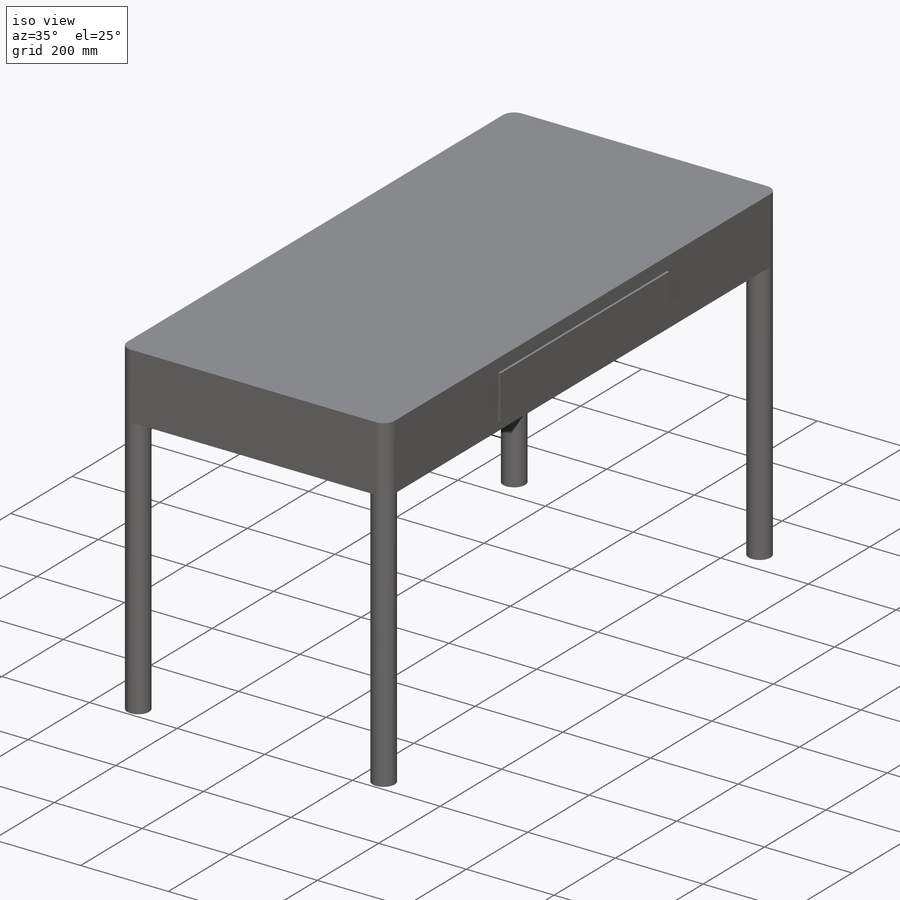
[diagram: iso view]
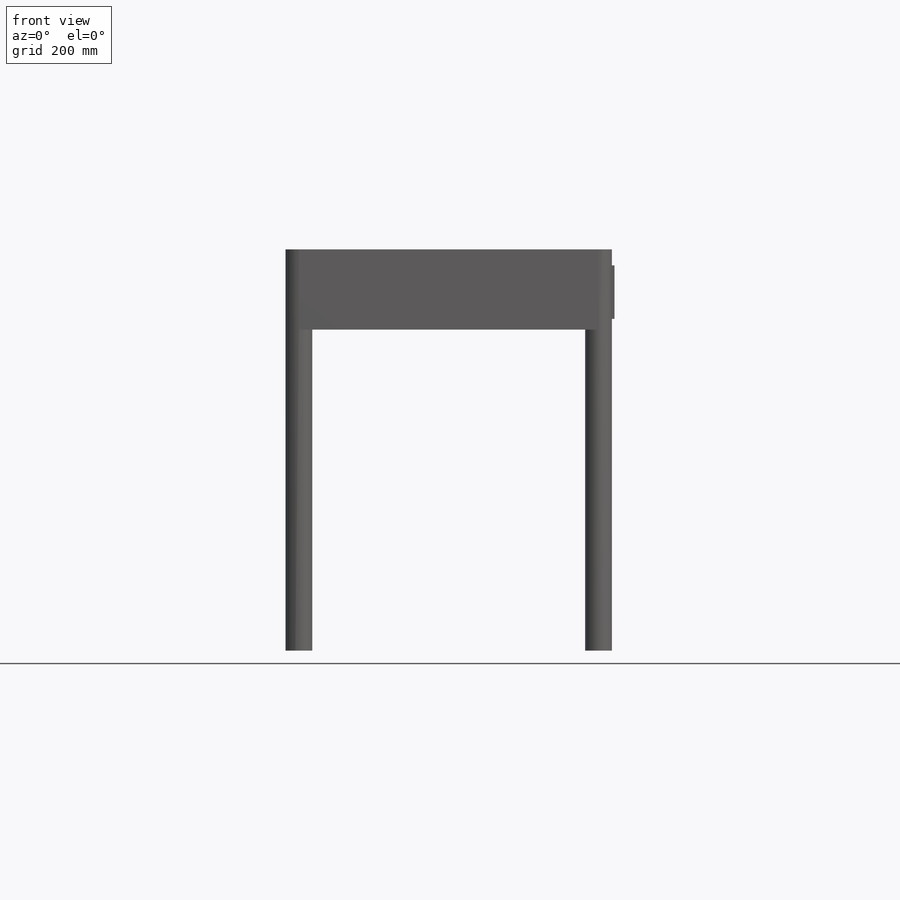
[diagram: front view]
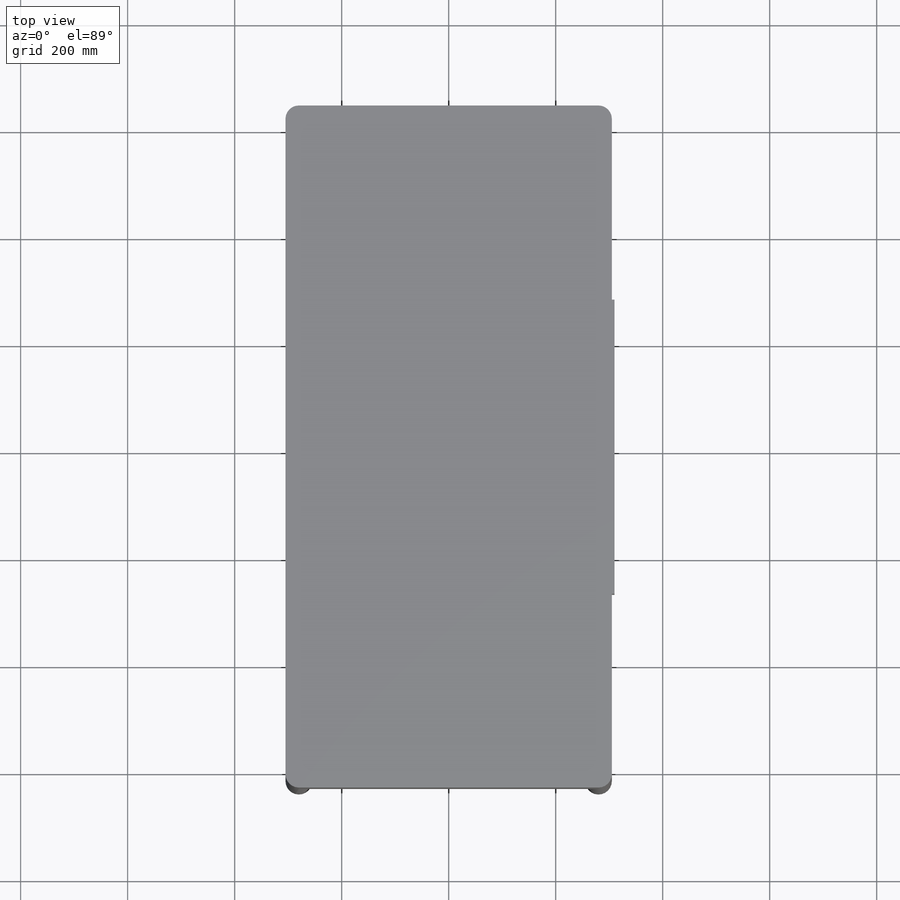
[diagram: top view]
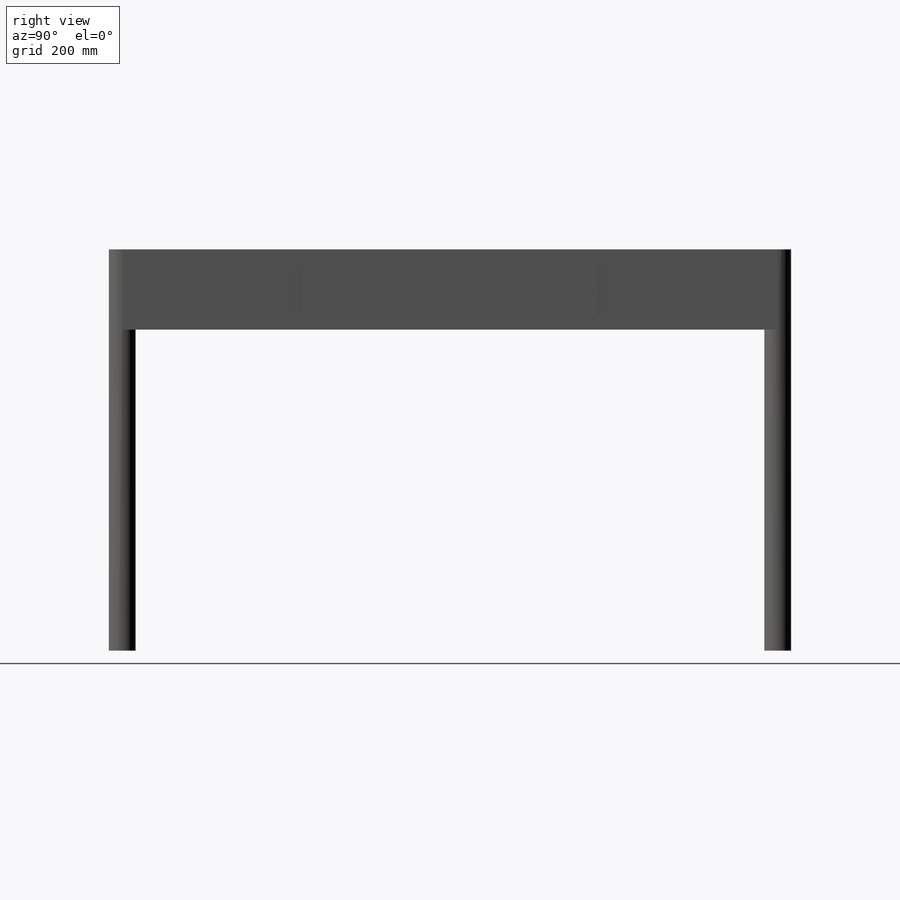
[diagram: right view]
SOLIDWORKS PART (.sldprt)
format: sldprt  version: not decoded by parser v0  size: 396,288 bytes
history: native  units: mm
features: plane x3, sketch x3, extrude x3, mirror x2, material x1, fillet x1 (+9 scaffold rows collapsed)
feature tree (22):
  scaffold x9  (default folders/planes/origin — collapsed)
  material  "红木"
  plane  "前视基准面"
  plane  "上视基准面"
  plane  "右视基准面"
  sketch  "草图2"  dims[c1.D1=~170.750172mm c1.D2=~88.524167mm c2.D1=1275.0mm c2.D2=610.0mm]
  extrude  "凸台-拉伸1"  Depth=150mm
  fillet  "圆角1"  Radius=25mm
  sketch  "草图3"  dims[D1=~74.947668mm]
  extrude  "凸台-拉伸2"  Depth=750mm
  mirror  "镜向1"
  mirror  "镜向2"
  sketch  "草图4"  dims[D1=550.0mm D2=30.0mm D3=100.0mm]
  extrude  "凸台-拉伸3"  Depth=5mm
decode coverage: 7 of 9 modeling features carry decoded parameters
note: ~ marks probable driven/reference dimensions
note: suppression state not decoded; provenance and decode notes live in map.json
